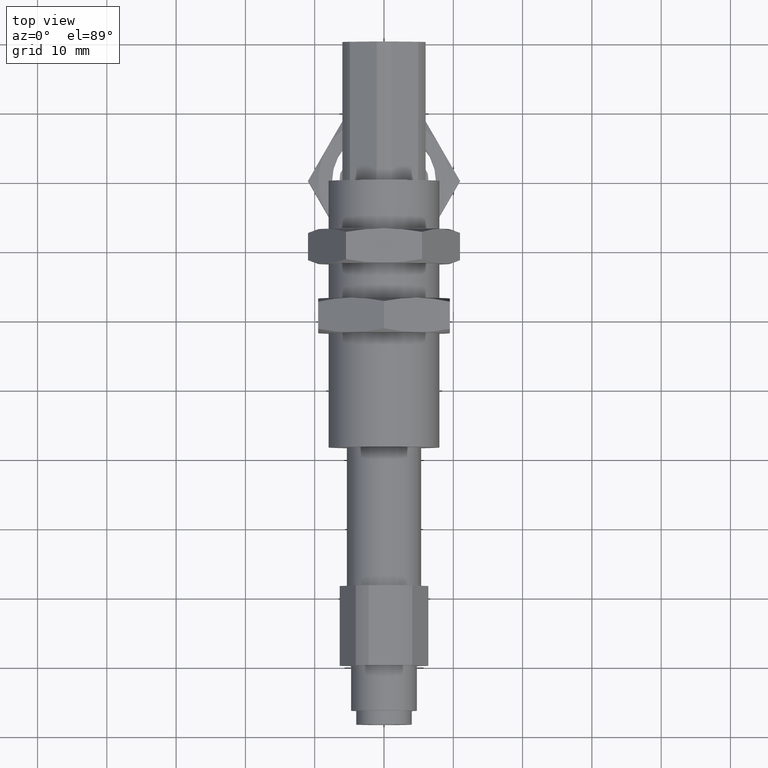
[diagram: clean part render]
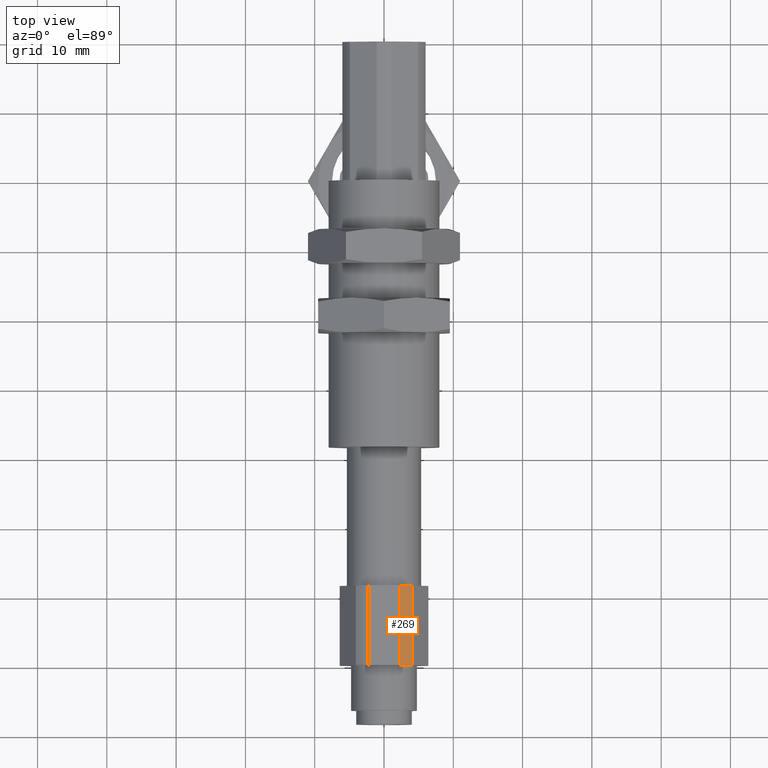
[diagram: same view with one face highlighted and labeled with its STEP entity id]
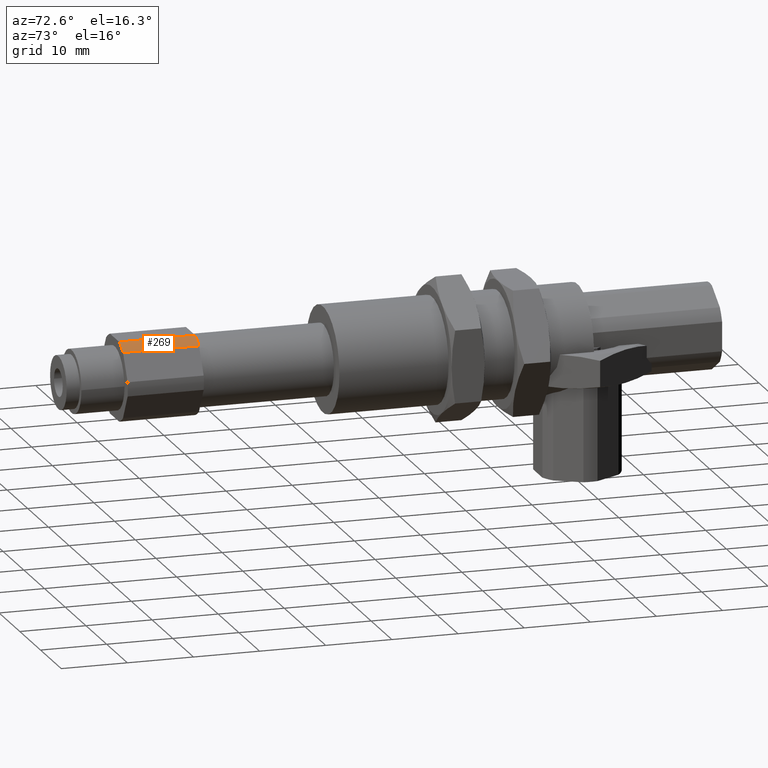
[diagram: same view with one face highlighted and labeled with its STEP entity id]
A machine part, top view. The second image highlights one B-rep face of the part: STEP entity #269.
A second angle (auxiliary view) of the same face is appended — the face is thin or edge-on in the first view.
In plain terms, the highlighted cylindrical surface (partial cylindrical patch) has radius 6.4 mm, axis along (0, -1, -0).
Its self-contained STEP definition (entity closure, byte-faithful):
#269 = ADVANCED_FACE( 'NONE', ( #409 ), #410, .T. );
#409 = FACE_OUTER_BOUND( '', #566, .T. );
#410 = CYLINDRICAL_SURFACE( '', #567, 6.40000000000000 );
#566 = EDGE_LOOP( '', ( #862, #863, #864, #865 ) );
#567 = AXIS2_PLACEMENT_3D( '', #866, #867, #868 );
#862 = ORIENTED_EDGE( '', *, *, #1191, .T. );
#863 = ORIENTED_EDGE( '', *, *, #1207, .T. );
#864 = ORIENTED_EDGE( '', *, *, #1204, .T. );
#865 = ORIENTED_EDGE( '', *, *, #1193, .T. );
#866 = CARTESIAN_POINT( '', ( 0.000000000000000, 0.000000000000000, 0.000000000000000 ) );
#867 = DIRECTION( '', ( -0.000000000000000, -0.000000000000000, -1.00000000000000 ) );
#868 = DIRECTION( '', ( 1.00000000000000, 0.000000000000000, 0.000000000000000 ) );
#1191 = EDGE_CURVE( 'NONE', #1376, #1374, #1377, .T. );
#1193 = EDGE_CURVE( 'NONE', #1379, #1376, #1380, .T. );
#1204 = EDGE_CURVE( 'NONE', #1400, #1379, #1401, .T. );
#1207 = EDGE_CURVE( 'NONE', #1374, #1400, #1405, .T. );
#1374 = VERTEX_POINT( 'NONE', #1719 );
#1376 = VERTEX_POINT( 'NONE', #1722 );
#1377 = LINE( '', #1723, #1724 );
#1379 = VERTEX_POINT( 'NONE', #1727 );
#1380 = CIRCLE( '', #1728, 6.40000000000000 );
#1400 = VERTEX_POINT( 'NONE', #1753 );
#1401 = LINE( '', #1754, #1755 );
#1405 = CIRCLE( '', #1761, 6.40000000000000 );
#1719 = CARTESIAN_POINT( '', ( 4.08259955014063, -4.92873015219859, 0.000000000000000 ) );
#1722 = CARTESIAN_POINT( '', ( 4.08259955014063, -4.92873015219859, -11.5000000000000 ) );
#1723 = CARTESIAN_POINT( '', ( 4.08259955014062, -4.92873015219859, 0.000000000000000 ) );
#1724 = VECTOR( '', #1963, 1000.00000000000 );
#1727 = CARTESIAN_POINT( '', ( 2.22710574513201, -6.00000000000000, -11.5000000000000 ) );
#1728 = AXIS2_PLACEMENT_3D( '', #1965, #1966, #1967 );
#1753 = CARTESIAN_POINT( '', ( 2.22710574513201, -6.00000000000000, 0.000000000000000 ) );
#1754 = CARTESIAN_POINT( '', ( 2.22710574513201, -6.00000000000000, 0.000000000000000 ) );
#1755 = VECTOR( '', #1988, 1000.00000000000 );
#1761 = AXIS2_PLACEMENT_3D( '', #1991, #1992, #1993 );
#1963 = DIRECTION( '', ( 0.000000000000000, 0.000000000000000, 1.00000000000000 ) );
#1965 = CARTESIAN_POINT( '', ( 0.000000000000000, 0.000000000000000, -11.5000000000000 ) );
#1966 = DIRECTION( '', ( 0.000000000000000, 0.000000000000000, 1.00000000000000 ) );
#1967 = DIRECTION( '', ( 1.00000000000000, 0.000000000000000, 0.000000000000000 ) );
#1988 = DIRECTION( '', ( 0.000000000000000, 0.000000000000000, -1.00000000000000 ) );
#1991 = CARTESIAN_POINT( '', ( 0.000000000000000, 0.000000000000000, 0.000000000000000 ) );
#1992 = DIRECTION( '', ( 0.000000000000000, 0.000000000000000, -1.00000000000000 ) );
#1993 = DIRECTION( '', ( 1.00000000000000, 0.000000000000000, 0.000000000000000 ) );